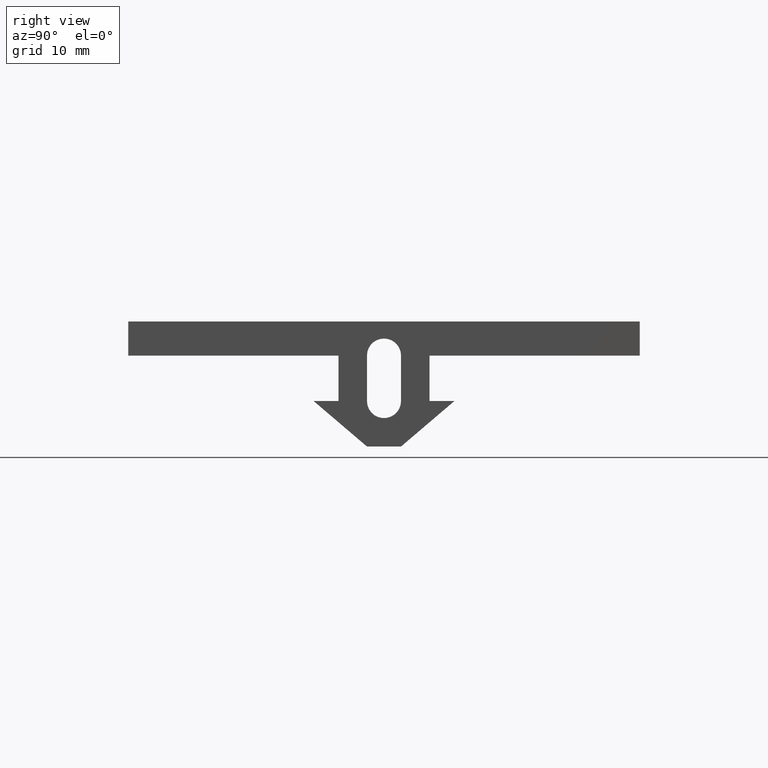
[diagram: clean part render]
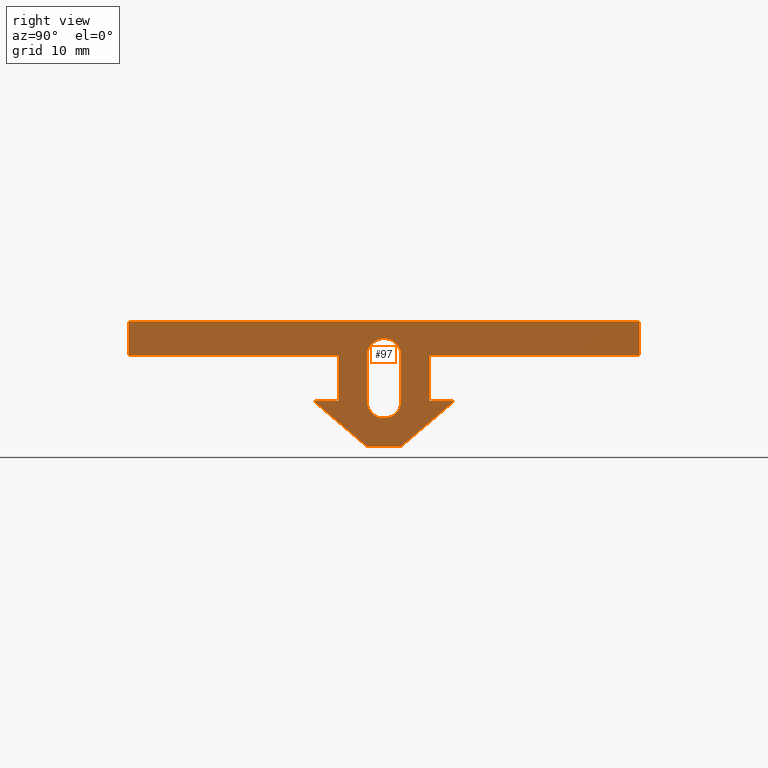
[diagram: same view with one face highlighted and labeled with its STEP entity id]
A machine part, right view. The second image highlights one B-rep face of the part: STEP entity #97.
In plain terms, the highlighted planar face has unit normal (1, -0, 0).
Its self-contained STEP definition (entity closure, byte-faithful):
#9 = EDGE_CURVE ( 'NONE', #16, #24, #294, .T. ) ;
#10 = VERTEX_POINT ( 'NONE', #289 ) ;
#16 = VERTEX_POINT ( 'NONE', #149 ) ;
#24 = VERTEX_POINT ( 'NONE', #277 ) ;
#26 = EDGE_CURVE ( 'NONE', #10, #210, #254, .T. ) ;
#32 = EDGE_CURVE ( 'NONE', #210, #36, #239, .T. ) ;
#36 = VERTEX_POINT ( 'NONE', #182 ) ;
#39 = ORIENTED_EDGE ( 'NONE', *, *, #262, .T. ) ;
#40 = VERTEX_POINT ( 'NONE', #178 ) ;
#45 = EDGE_CURVE ( 'NONE', #36, #40, #269, .T. ) ;
#49 = VERTEX_POINT ( 'NONE', #334 ) ;
#51 = VERTEX_POINT ( 'NONE', #479 ) ;
#53 = EDGE_CURVE ( 'NONE', #60, #51, #478, .T. ) ;
#60 = VERTEX_POINT ( 'NONE', #437 ) ;
#62 = EDGE_CURVE ( 'NONE', #221, #60, #436, .T. ) ;
#67 = VERTEX_POINT ( 'NONE', #427 ) ;
#69 = EDGE_CURVE ( 'NONE', #40, #67, #448, .T. ) ;
#81 = ORIENTED_EDGE ( 'NONE', *, *, #26, .T. ) ;
#82 = ORIENTED_EDGE ( 'NONE', *, *, #32, .T. ) ;
#83 = ORIENTED_EDGE ( 'NONE', *, *, #45, .T. ) ;
#84 = ORIENTED_EDGE ( 'NONE', *, *, #69, .T. ) ;
#85 = ORIENTED_EDGE ( 'NONE', *, *, #264, .T. ) ;
#86 = ORIENTED_EDGE ( 'NONE', *, *, #238, .T. ) ;
#97 = ADVANCED_FACE ( 'NONE', ( #391, #529 ), #528, .T. ) ;
#98 = EDGE_LOOP ( 'NONE', ( #99, #100, #101, #266, #267 ) ) ;
#99 = ORIENTED_EDGE ( 'NONE', *, *, #9, .F. ) ;
#100 = ORIENTED_EDGE ( 'NONE', *, *, #117, .F. ) ;
#101 = ORIENTED_EDGE ( 'NONE', *, *, #107, .F. ) ;
#105 = VERTEX_POINT ( 'NONE', #328 ) ;
#107 = EDGE_CURVE ( 'NONE', #105, #303, #327, .T. ) ;
#117 = EDGE_CURVE ( 'NONE', #303, #16, #475, .T. ) ;
#149 = CARTESIAN_POINT ( 'NONE',  ( 44.66704193895279200, 1.500000000000000900, -3.000000000000000000 ) ) ;
#159 = EDGE_LOOP ( 'NONE', ( #160, #161, #162, #163, #164, #81, #82, #83, #84, #85, #86, #39 ) ) ;
#160 = ORIENTED_EDGE ( 'NONE', *, *, #166, .T. ) ;
#161 = ORIENTED_EDGE ( 'NONE', *, *, #223, .T. ) ;
#162 = ORIENTED_EDGE ( 'NONE', *, *, #62, .T. ) ;
#163 = ORIENTED_EDGE ( 'NONE', *, *, #53, .T. ) ;
#164 = ORIENTED_EDGE ( 'NONE', *, *, #214, .T. ) ;
#166 = EDGE_CURVE ( 'NONE', #167, #49, #471, .T. ) ;
#167 = VERTEX_POINT ( 'NONE', #467 ) ;
#178 = CARTESIAN_POINT ( 'NONE',  ( 44.66704193895279200, 4.000000000000003600, -7.000000000000001800 ) ) ;
#182 = CARTESIAN_POINT ( 'NONE',  ( 44.66704193895279200, 6.191319751992913300, -7.000000000000001800 ) ) ;
#187 = DIRECTION ( 'NONE',  ( -0.0000000000000000000, 0.7609476459801682900, 0.6488132859900761500 ) ) ;
#188 = VECTOR ( 'NONE', #187, 1000.000000000000200 ) ;
#189 = CARTESIAN_POINT ( 'NONE',  ( 44.66704193895279200, 6.191319751992913300, -7.000000000000001800 ) ) ;
#210 = VERTEX_POINT ( 'NONE', #385 ) ;
#214 = EDGE_CURVE ( 'NONE', #51, #10, #378, .T. ) ;
#221 = VERTEX_POINT ( 'NONE', #363 ) ;
#223 = EDGE_CURVE ( 'NONE', #49, #221, #362, .T. ) ;
#234 = VERTEX_POINT ( 'NONE', #340 ) ;
#236 = VERTEX_POINT ( 'NONE', #490 ) ;
#238 = EDGE_CURVE ( 'NONE', #236, #234, #489, .T. ) ;
#239 = LINE ( 'NONE', #189, #188 ) ;
#251 = DIRECTION ( 'NONE',  ( 0.0000000000000000000, 1.000000000000000000, 0.0000000000000000000 ) ) ;
#252 = VECTOR ( 'NONE', #251, 1000.000000000000000 ) ;
#253 = CARTESIAN_POINT ( 'NONE',  ( 44.66704193895279200, -1.499999999999998700, -11.00000000000000000 ) ) ;
#254 = LINE ( 'NONE', #253, #252 ) ;
#262 = EDGE_CURVE ( 'NONE', #234, #167, #588, .T. ) ;
#264 = EDGE_CURVE ( 'NONE', #67, #236, #610, .T. ) ;
#266 = ORIENTED_EDGE ( 'NONE', *, *, #310, .F. ) ;
#267 = ORIENTED_EDGE ( 'NONE', *, *, #308, .F. ) ;
#268 = CARTESIAN_POINT ( 'NONE',  ( 44.66704193895279200, 4.000000000000003600, -7.000000000000001800 ) ) ;
#269 = LINE ( 'NONE', #268, #335 ) ;
#277 = CARTESIAN_POINT ( 'NONE',  ( 44.66704193895279200, 3.673819061467131800E-016, -1.499999999999999600 ) ) ;
#289 = CARTESIAN_POINT ( 'NONE',  ( 44.66704193895279200, -1.499999999999998700, -11.00000000000000000 ) ) ;
#290 = DIRECTION ( 'NONE',  ( 0.0000000000000000000, 0.0000000000000000000, -1.000000000000000000 ) ) ;
#291 = DIRECTION ( 'NONE',  ( 1.000000000000000000, 0.0000000000000000000, 0.0000000000000000000 ) ) ;
#292 = CARTESIAN_POINT ( 'NONE',  ( 44.66704193895279200, 3.673819061467131800E-016, -3.000000000000000000 ) ) ;
#293 = AXIS2_PLACEMENT_3D ( 'NONE', #292, #291, #290 ) ;
#294 = CIRCLE ( 'NONE', #293, 1.500000000000000400 ) ;
#303 = VERTEX_POINT ( 'NONE', #590 ) ;
#308 = EDGE_CURVE ( 'NONE', #24, #309, #589, .T. ) ;
#309 = VERTEX_POINT ( 'NONE', #664 ) ;
#310 = EDGE_CURVE ( 'NONE', #309, #105, #663, .T. ) ;
#323 = DIRECTION ( 'NONE',  ( 0.0000000000000000000, 0.0000000000000000000, -1.000000000000000000 ) ) ;
#324 = DIRECTION ( 'NONE',  ( 1.000000000000000000, 0.0000000000000000000, 0.0000000000000000000 ) ) ;
#325 = CARTESIAN_POINT ( 'NONE',  ( 44.66704193895279200, 8.572244476756639800E-016, -7.000000000000000900 ) ) ;
#326 = AXIS2_PLACEMENT_3D ( 'NONE', #325, #324, #323 ) ;
#327 = CIRCLE ( 'NONE', #326, 1.499999999999999600 ) ;
#328 = CARTESIAN_POINT ( 'NONE',  ( 44.66704193895279200, -1.499999999999999100, -7.000000000000000000 ) ) ;
#334 = CARTESIAN_POINT ( 'NONE',  ( 44.66704193895279200, -22.50000000000000000, -3.000000000000000000 ) ) ;
#335 = VECTOR ( 'NONE', #498, 1000.000000000000000 ) ;
#340 = CARTESIAN_POINT ( 'NONE',  ( 44.66704193895279200, 22.50000000000000000, 5.510728592200697700E-015 ) ) ;
#359 = DIRECTION ( 'NONE',  ( 0.0000000000000000000, 1.000000000000000000, 0.0000000000000000000 ) ) ;
#360 = VECTOR ( 'NONE', #359, 1000.000000000000000 ) ;
#361 = CARTESIAN_POINT ( 'NONE',  ( 44.66704193895279200, -22.50000000000000000, -3.000000000000000000 ) ) ;
#362 = LINE ( 'NONE', #361, #360 ) ;
#363 = CARTESIAN_POINT ( 'NONE',  ( 44.66704193895279200, -4.000000000000000000, -3.000000000000000000 ) ) ;
#375 = DIRECTION ( 'NONE',  ( 0.0000000000000000000, 0.7609476459801684000, -0.6488132859900761500 ) ) ;
#376 = VECTOR ( 'NONE', #375, 1000.000000000000000 ) ;
#377 = CARTESIAN_POINT ( 'NONE',  ( 44.66704193895279200, -6.191319751992911500, -7.000000000000003600 ) ) ;
#378 = LINE ( 'NONE', #377, #376 ) ;
#385 = CARTESIAN_POINT ( 'NONE',  ( 44.66704193895279200, 1.500000000000001300, -11.00000000000000000 ) ) ;
#391 = FACE_BOUND ( 'NONE', #98, .T. ) ;
#427 = CARTESIAN_POINT ( 'NONE',  ( 44.66704193895279200, 4.000000000000000000, -2.999999999999999100 ) ) ;
#433 = DIRECTION ( 'NONE',  ( 0.0000000000000000000, -4.336808689942014800E-016, -1.000000000000000000 ) ) ;
#434 = VECTOR ( 'NONE', #433, 1000.000000000000000 ) ;
#435 = CARTESIAN_POINT ( 'NONE',  ( 44.66704193895279200, -4.000000000000000000, -3.000000000000000000 ) ) ;
#436 = LINE ( 'NONE', #435, #434 ) ;
#437 = CARTESIAN_POINT ( 'NONE',  ( 44.66704193895279200, -4.000000000000001800, -7.000000000000002700 ) ) ;
#445 = DIRECTION ( 'NONE',  ( -0.0000000000000000000, -8.673617379884029600E-016, 1.000000000000000000 ) ) ;
#446 = VECTOR ( 'NONE', #445, 1000.000000000000000 ) ;
#447 = CARTESIAN_POINT ( 'NONE',  ( 44.66704193895279200, 4.000000000000000000, -2.999999999999999100 ) ) ;
#448 = LINE ( 'NONE', #447, #446 ) ;
#467 = CARTESIAN_POINT ( 'NONE',  ( 44.66704193895279200, -22.50000000000000000, 0.0000000000000000000 ) ) ;
#468 = DIRECTION ( 'NONE',  ( 0.0000000000000000000, 0.0000000000000000000, -1.000000000000000000 ) ) ;
#469 = VECTOR ( 'NONE', #468, 1000.000000000000000 ) ;
#470 = CARTESIAN_POINT ( 'NONE',  ( 44.66704193895279200, -22.50000000000000000, 0.0000000000000000000 ) ) ;
#471 = LINE ( 'NONE', #470, #469 ) ;
#472 = DIRECTION ( 'NONE',  ( 0.0000000000000000000, 0.0000000000000000000, 1.000000000000000000 ) ) ;
#473 = VECTOR ( 'NONE', #472, 1000.000000000000000 ) ;
#474 = CARTESIAN_POINT ( 'NONE',  ( 44.66704193895279200, 1.500000000000000900, -7.000000000000000000 ) ) ;
#475 = LINE ( 'NONE', #474, #473 ) ;
#478 = LINE ( 'NONE', #495, #494 ) ;
#479 = CARTESIAN_POINT ( 'NONE',  ( 44.66704193895279200, -6.191319751992911500, -7.000000000000003600 ) ) ;
#486 = DIRECTION ( 'NONE',  ( -0.0000000000000000000, -0.0000000000000000000, 1.000000000000000000 ) ) ;
#487 = VECTOR ( 'NONE', #486, 1000.000000000000000 ) ;
#488 = CARTESIAN_POINT ( 'NONE',  ( 44.66704193895279200, 22.50000000000000000, 5.510728592200697700E-015 ) ) ;
#489 = LINE ( 'NONE', #488, #487 ) ;
#490 = CARTESIAN_POINT ( 'NONE',  ( 44.66704193895279200, 22.50000000000000000, -2.999999999999994200 ) ) ;
#493 = DIRECTION ( 'NONE',  ( 0.0000000000000000000, -1.000000000000000000, -3.958170582816934900E-016 ) ) ;
#494 = VECTOR ( 'NONE', #493, 1000.000000000000000 ) ;
#495 = CARTESIAN_POINT ( 'NONE',  ( 44.66704193895279200, -4.000000000000001800, -7.000000000000002700 ) ) ;
#498 = DIRECTION ( 'NONE',  ( -0.0000000000000000000, -1.000000000000000000, -0.0000000000000000000 ) ) ;
#523 = DIRECTION ( 'NONE',  ( 0.0000000000000000000, 0.0000000000000000000, -1.000000000000000000 ) ) ;
#524 = DIRECTION ( 'NONE',  ( 1.000000000000000000, -0.0000000000000000000, 0.0000000000000000000 ) ) ;
#525 = CARTESIAN_POINT ( 'NONE',  ( 44.66704193895279200, -22.50000000000000000, -3.000000000000000000 ) ) ;
#527 = AXIS2_PLACEMENT_3D ( 'NONE', #525, #524, #523 ) ;
#528 = PLANE ( 'NONE',  #527 ) ;
#529 = FACE_OUTER_BOUND ( 'NONE', #159, .T. ) ;
#587 = CARTESIAN_POINT ( 'NONE',  ( 44.66704193895279200, -22.50000000000000000, 0.0000000000000000000 ) ) ;
#588 = LINE ( 'NONE', #587, #605 ) ;
#589 = CIRCLE ( 'NONE', #668, 1.500000000000000400 ) ;
#590 = CARTESIAN_POINT ( 'NONE',  ( 44.66704193895279200, 1.500000000000000900, -7.000000000000000000 ) ) ;
#604 = DIRECTION ( 'NONE',  ( -0.0000000000000000000, -1.000000000000000000, -1.224606353822377500E-016 ) ) ;
#605 = VECTOR ( 'NONE', #604, 1000.000000000000000 ) ;
#609 = CARTESIAN_POINT ( 'NONE',  ( 44.66704193895279200, 22.50000000000000000, -2.999999999999994200 ) ) ;
#610 = LINE ( 'NONE', #609, #676 ) ;
#660 = DIRECTION ( 'NONE',  ( 0.0000000000000000000, 2.168404344971008900E-016, -1.000000000000000000 ) ) ;
#661 = VECTOR ( 'NONE', #660, 1000.000000000000000 ) ;
#662 = CARTESIAN_POINT ( 'NONE',  ( 44.66704193895279200, -1.500000000000000000, -3.000000000000000400 ) ) ;
#663 = LINE ( 'NONE', #662, #661 ) ;
#664 = CARTESIAN_POINT ( 'NONE',  ( 44.66704193895279200, -1.500000000000000000, -3.000000000000000400 ) ) ;
#665 = DIRECTION ( 'NONE',  ( 0.0000000000000000000, 0.0000000000000000000, -1.000000000000000000 ) ) ;
#666 = DIRECTION ( 'NONE',  ( 1.000000000000000000, 0.0000000000000000000, 0.0000000000000000000 ) ) ;
#667 = CARTESIAN_POINT ( 'NONE',  ( 44.66704193895279200, 3.673819061467131800E-016, -3.000000000000000000 ) ) ;
#668 = AXIS2_PLACEMENT_3D ( 'NONE', #667, #666, #665 ) ;
#675 = DIRECTION ( 'NONE',  ( -0.0000000000000000000, 1.000000000000000000, 2.578643004830388900E-016 ) ) ;
#676 = VECTOR ( 'NONE', #675, 1000.000000000000000 ) ;